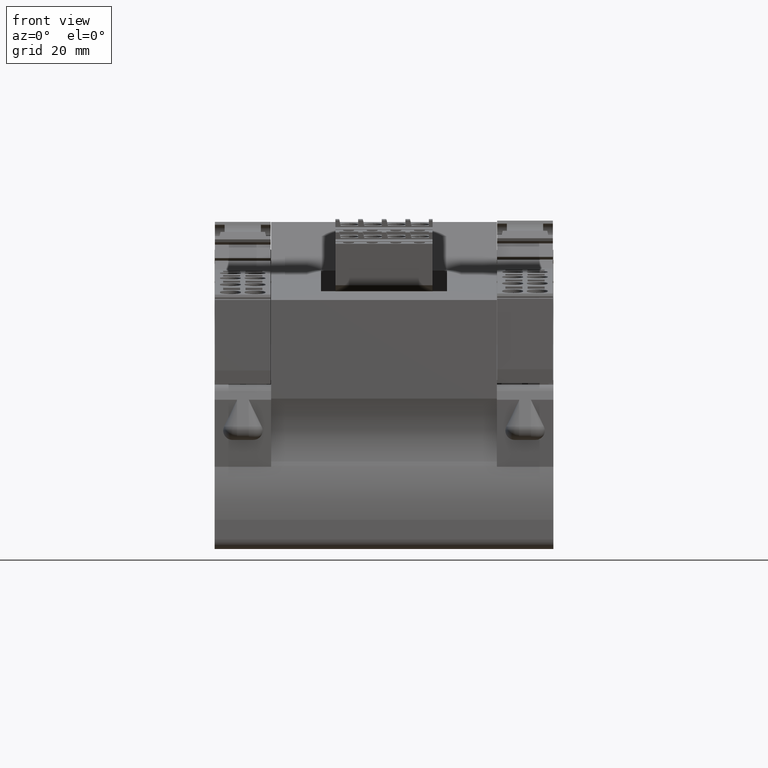
[diagram: clean part render]
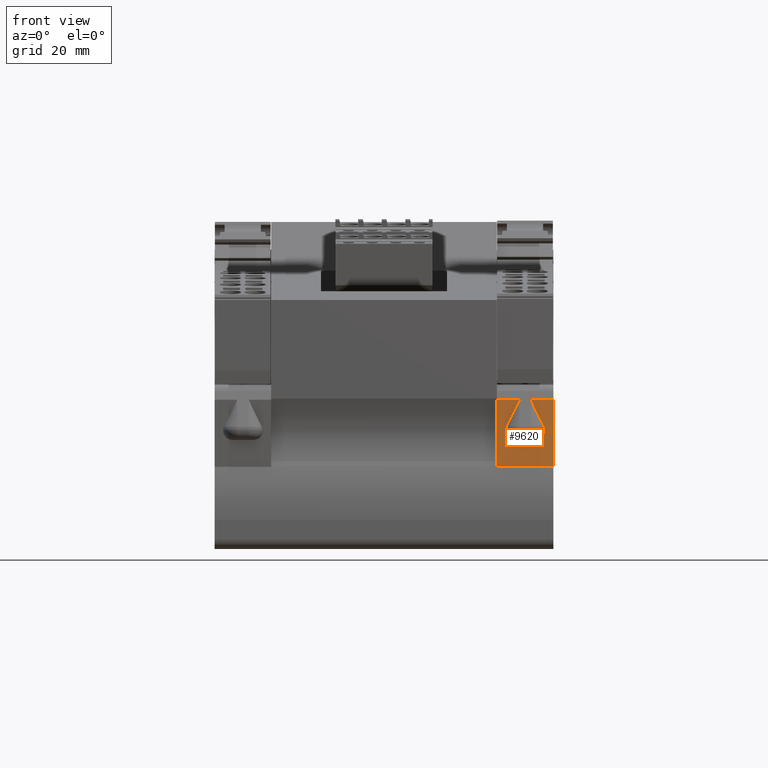
[diagram: same view with one face highlighted and labeled with its STEP entity id]
A machine part, front view. The second image highlights one B-rep face of the part: STEP entity #9620.
In plain terms, the highlighted planar face has unit normal (-0, -1, -0).
Its self-contained STEP definition (entity closure, byte-faithful):
#7990=CARTESIAN_POINT('',(-12.4305785700545,-46.180010105646,58.95));
#8000=VERTEX_POINT('',#7990);
#8030=CARTESIAN_POINT('',(-12.4305785700545,-46.180010105646,12.45));
#8040=DIRECTION('',(-1.04009420822853E-45,9.77440590876002E-45,1.));
#8050=VECTOR('',#8040,1.);
#8060=LINE('',#8030,#8050);
#8070=CARTESIAN_POINT('',(-12.4305785700545,-46.1800101056552,
54.1250000000011));
#8080=VERTEX_POINT('',#8070);
#8090=EDGE_CURVE('',#8080,#8000,#8060,.T.);
#8310=CARTESIAN_POINT('',(-12.4305785700545,-46.1800101056552,
51.6250000000011));
#8320=VERTEX_POINT('',#8310);
#8350=CARTESIAN_POINT('',(-12.4305785700545,-46.180010105646,46.8));
#8360=VERTEX_POINT('',#8350);
#8370=EDGE_CURVE('',#8360,#8320,#8060,.T.);
#8560=CARTESIAN_POINT('',(-12.4305785700589,-0.0366387028802251,46.8));
#8570=DIRECTION('',(0.,-1.,0.));
#8580=VECTOR('',#8570,1.);
#8590=LINE('',#8560,#8580);
#8600=CARTESIAN_POINT('',(-12.4305785700589,-31.7738715387818,46.8));
#8610=VERTEX_POINT('',#8600);
#8620=EDGE_CURVE('',#8610,#8360,#8590,.T.);
#8980=CARTESIAN_POINT('',(-12.4305785700589,-46.1800101056551,58.95));
#8990=DIRECTION('',(1.,0.,0.));
#9000=DIRECTION('',(0.,-1.,1.19110369467609E-44));
#9010=AXIS2_PLACEMENT_3D('',#8980,#8990,#9000);
#9020=PLANE('',#9010);
#9030=ORIENTED_EDGE('',*,*,#8370,.F.);
#9040=CARTESIAN_POINT('',(-12.4305785700634,-40.4316492458476,
48.826745771378));
#9050=DIRECTION('',(-1.3959083789413E-12,0.899127114313798,
-0.437687596700824));
#9060=VECTOR('',#9050,6.39326828019719);
#9070=LINE('',#9040,#9060);
#9080=CARTESIAN_POINT('',(-12.4305785700634,-40.4316492458476,
48.826745771378));
#9090=VERTEX_POINT('',#9080);
#9100=EDGE_CURVE('',#8320,#9090,#9070,.T.);
#9110=ORIENTED_EDGE('',*,*,#9100,.F.);
#9120=CARTESIAN_POINT('',(-12.4305785700545,-39.5562740524459,
50.6250000000056));
#9130=DIRECTION('',(-1.,0.,0.));
#9140=DIRECTION('',(0.,-1.19110369467609E-44,1.));
#9150=AXIS2_PLACEMENT_3D('',#9120,#9130,#9140);
#9160=CIRCLE('',#9150,2.);
#9170=CARTESIAN_POINT('',(-12.4305785700589,-37.5562740524459,
50.6250000000056));
#9180=VERTEX_POINT('',#9170);
#9190=EDGE_CURVE('',#9180,#9090,#9160,.T.);
#9200=ORIENTED_EDGE('',*,*,#9190,.T.);
#9210=CARTESIAN_POINT('',(-12.4305785700589,-37.5562740524459,12.45));
#9220=DIRECTION('',(0.,-1.19110369467609E-44,1.));
#9230=VECTOR('',#9220,1.);
#9240=LINE('',#9210,#9230);
#9250=CARTESIAN_POINT('',(-12.4305785700545,-37.5562740524459,
55.1249999999967));
#9260=VERTEX_POINT('',#9250);
#9270=EDGE_CURVE('',#9180,#9260,#9240,.T.);
#9280=ORIENTED_EDGE('',*,*,#9270,.F.);
#9290=CARTESIAN_POINT('',(-12.4305785700545,-39.5562740524459,
55.1249999999967));
#9300=DIRECTION('',(-1.,0.,0.));
#9310=DIRECTION('',(0.,1.19110369467609E-44,-1.));
#9320=AXIS2_PLACEMENT_3D('',#9290,#9300,#9310);
#9330=CIRCLE('',#9320,2.);
#9340=CARTESIAN_POINT('',(-12.4305785700545,-40.4316492458476,
56.9232542286242));
#9350=VERTEX_POINT('',#9340);
#9360=EDGE_CURVE('',#9350,#9260,#9330,.T.);
#9370=ORIENTED_EDGE('',*,*,#9360,.T.);
#9380=CARTESIAN_POINT('',(-12.4305785700634,-40.4316492458476,
56.9232542286242));
#9390=DIRECTION('',(-1.39618622694666E-12,0.899127114313798,
0.437687596700824));
#9400=VECTOR('',#9390,6.39326828019719);
#9410=LINE('',#9380,#9400);
#9420=EDGE_CURVE('',#8080,#9350,#9410,.T.);
#9430=ORIENTED_EDGE('',*,*,#9420,.T.);
#9440=ORIENTED_EDGE('',*,*,#8090,.F.);
#9450=CARTESIAN_POINT('',(-12.4305785700589,-0.0366387028802251,58.95));
#9460=DIRECTION('',(0.,-1.,1.19110369467609E-44));
#9470=VECTOR('',#9460,1.);
#9480=LINE('',#9450,#9470);
#9490=CARTESIAN_POINT('',(-12.4305785700589,-31.7738715387818,58.95));
#9500=VERTEX_POINT('',#9490);
#9510=EDGE_CURVE('',#9500,#8000,#9480,.T.);
#9520=ORIENTED_EDGE('',*,*,#9510,.T.);
#9530=CARTESIAN_POINT('',(-12.4305785700589,-31.7738715387818,-13.95));
#9540=DIRECTION('',(1.04009420822853E-45,1.19110369467609E-44,-1.));
#9550=VECTOR('',#9540,1.);
#9560=LINE('',#9530,#9550);
#9570=EDGE_CURVE('',#9500,#8610,#9560,.T.);
#9580=ORIENTED_EDGE('',*,*,#9570,.F.);
#9590=ORIENTED_EDGE('',*,*,#8620,.F.);
#9600=EDGE_LOOP('',(#9590,#9580,#9520,#9440,#9430,#9370,#9280,#9200,
#9110,#9030));
#9610=FACE_OUTER_BOUND('',#9600,.T.);
#9620=ADVANCED_FACE('',(#9610),#9020,.T.);